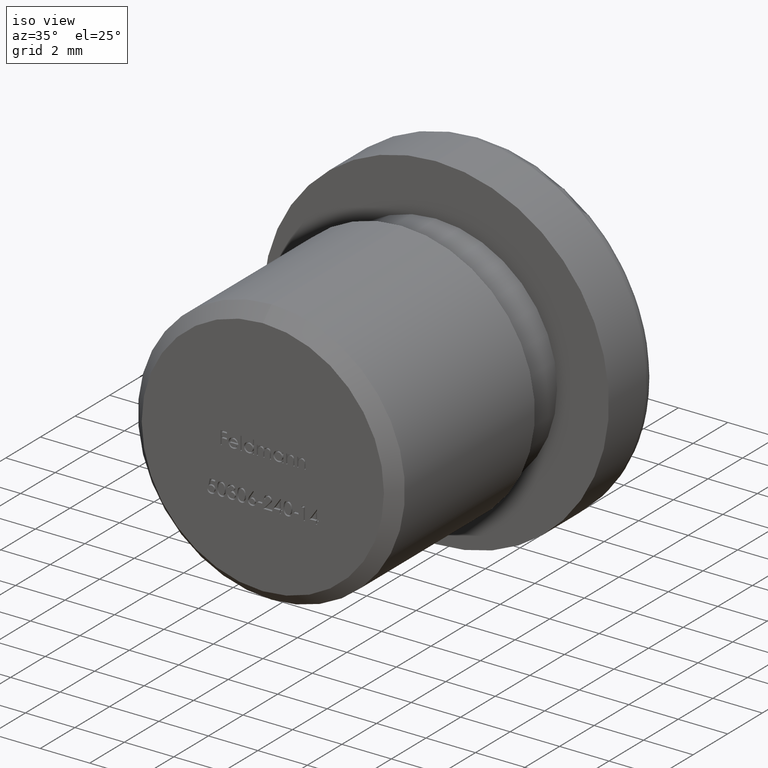
[diagram: clean part render]
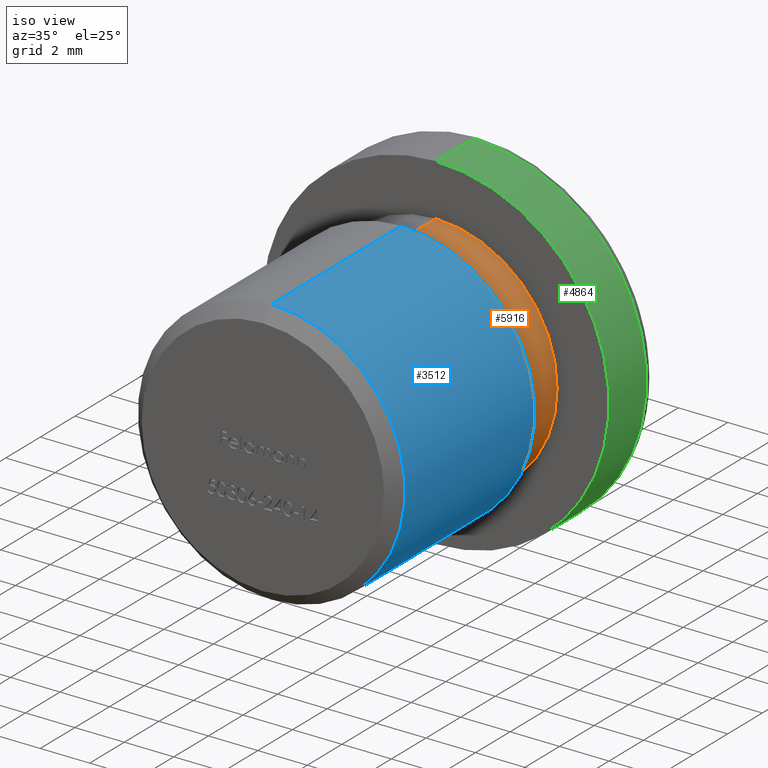
[diagram: same view with three faces highlighted in distinct colors, each labeled with its STEP entity id]
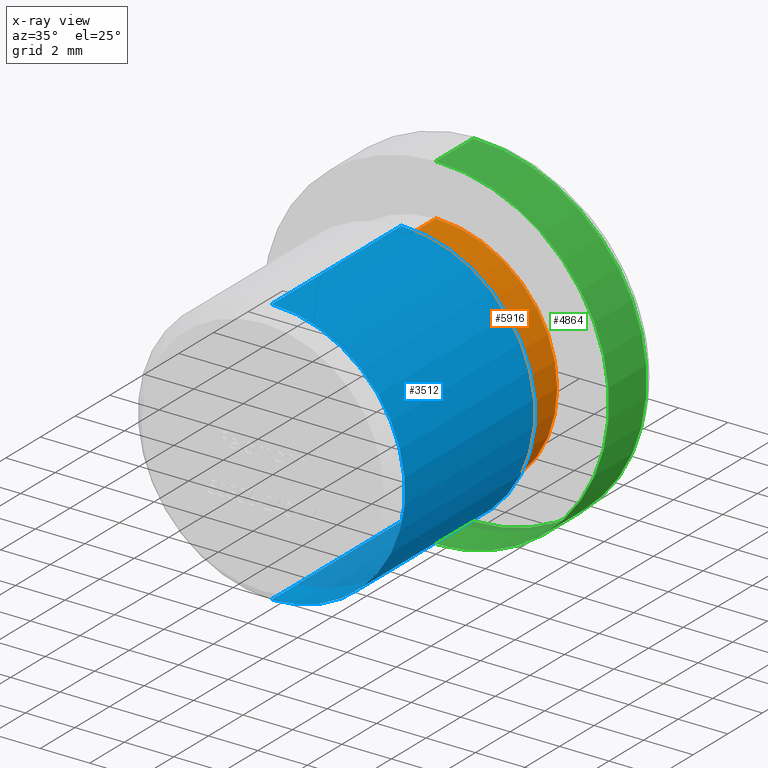
[diagram: x-ray of the same camera — body ghosted, the three highlighted faces saturated]
A machine part, iso view with three faces highlighted in distinct colors.
The next image is the same camera in x-ray (body ghosted, the three faces saturated) — at least one of them is partly hidden behind the body in this view.
Their STEP definitions:

[orange] entity #5916 — the highlighted cylindrical surface (partial cylindrical patch) has radius 4.9 mm, axis along (-0, -1, -0).
#37 = DIRECTION ( 'NONE',  ( -0.0000000000000000000, -1.000000000000000000, -0.0000000000000000000 ) ) ;
#114 = EDGE_CURVE ( 'NONE', #4707, #1824, #4115, .T. ) ;
#119 = CARTESIAN_POINT ( 'NONE',  ( 0.0000000000000000000, 8.499999999999998200, 0.0000000000000000000 ) ) ;
#229 = VECTOR ( 'NONE', #2587, 1000.000000000000000 ) ;
#782 = VERTEX_POINT ( 'NONE', #941 ) ;
#941 = CARTESIAN_POINT ( 'NONE',  ( 0.0000000000000000000, 8.499999999999998200, -4.899999999999999500 ) ) ;
#1355 = CARTESIAN_POINT ( 'NONE',  ( 0.0000000000000000000, 0.0000000000000000000, -4.899999999999999500 ) ) ;
#1472 = CYLINDRICAL_SURFACE ( 'NONE', #4828, 4.899999999999999500 ) ;
#1775 = EDGE_CURVE ( 'NONE', #13017, #782, #10846, .T. ) ;
#1824 = VERTEX_POINT ( 'NONE', #8151 ) ;
#2587 = DIRECTION ( 'NONE',  ( -0.0000000000000000000, -1.000000000000000000, -0.0000000000000000000 ) ) ;
#2930 = CARTESIAN_POINT ( 'NONE',  ( 6.000769315822030700E-016, 10.00000000000000000, 4.899999999999999500 ) ) ;
#3078 = AXIS2_PLACEMENT_3D ( 'NONE', #7900, #9133, #12455 ) ;
#3415 = DIRECTION ( 'NONE',  ( 0.0000000000000000000, 0.0000000000000000000, -1.000000000000000000 ) ) ;
#3638 = DIRECTION ( 'NONE',  ( 0.0000000000000000000, 1.000000000000000000, 0.0000000000000000000 ) ) ;
#4115 = LINE ( 'NONE', #10584, #229 ) ;
#4707 = VERTEX_POINT ( 'NONE', #2930 ) ;
#4811 = DIRECTION ( 'NONE',  ( 0.0000000000000000000, 0.0000000000000000000, -1.000000000000000000 ) ) ;
#4828 = AXIS2_PLACEMENT_3D ( 'NONE', #10295, #37, #3415 ) ;
#5094 = ORIENTED_EDGE ( 'NONE', *, *, #9094, .T. ) ;
#5680 = ORIENTED_EDGE ( 'NONE', *, *, #114, .T. ) ;
#5916 = ADVANCED_FACE ( 'NONE', ( #6125 ), #1472, .T. ) ;
#6125 = FACE_OUTER_BOUND ( 'NONE', #13423, .T. ) ;
#7838 = VECTOR ( 'NONE', #11608, 1000.000000000000000 ) ;
#7843 = CARTESIAN_POINT ( 'NONE',  ( 0.0000000000000000000, 10.00000000000000000, -4.899999999999999500 ) ) ;
#7900 = CARTESIAN_POINT ( 'NONE',  ( 0.0000000000000000000, 10.00000000000000000, 0.0000000000000000000 ) ) ;
#8151 = CARTESIAN_POINT ( 'NONE',  ( 6.000769315822030700E-016, 8.499999999999998200, 4.899999999999999500 ) ) ;
#8285 = CIRCLE ( 'NONE', #3078, 4.899999999999999500 ) ;
#9094 = EDGE_CURVE ( 'NONE', #1824, #782, #11147, .T. ) ;
#9133 = DIRECTION ( 'NONE',  ( -0.0000000000000000000, -1.000000000000000000, -0.0000000000000000000 ) ) ;
#9986 = ORIENTED_EDGE ( 'NONE', *, *, #10135, .T. ) ;
#10135 = EDGE_CURVE ( 'NONE', #13017, #4707, #8285, .T. ) ;
#10295 = CARTESIAN_POINT ( 'NONE',  ( 0.0000000000000000000, 0.0000000000000000000, 0.0000000000000000000 ) ) ;
#10584 = CARTESIAN_POINT ( 'NONE',  ( 6.000769315822030700E-016, 0.0000000000000000000, 4.899999999999999500 ) ) ;
#10846 = LINE ( 'NONE', #1355, #7838 ) ;
#11147 = CIRCLE ( 'NONE', #14440, 4.899999999999999500 ) ;
#11608 = DIRECTION ( 'NONE',  ( -0.0000000000000000000, -1.000000000000000000, -0.0000000000000000000 ) ) ;
#11634 = ORIENTED_EDGE ( 'NONE', *, *, #1775, .F. ) ;
#12455 = DIRECTION ( 'NONE',  ( 0.0000000000000000000, 0.0000000000000000000, -1.000000000000000000 ) ) ;
#13017 = VERTEX_POINT ( 'NONE', #7843 ) ;
#13423 = EDGE_LOOP ( 'NONE', ( #9986, #5680, #5094, #11634 ) ) ;
#14440 = AXIS2_PLACEMENT_3D ( 'NONE', #119, #3638, #4811 ) ;

[blue] entity #3512 — the highlighted cylindrical surface (partial cylindrical patch) has radius 5.4 mm, axis along (-0, -1, -0).
#275 = FACE_OUTER_BOUND ( 'NONE', #2495, .T. ) ;
#413 = DIRECTION ( 'NONE',  ( -0.0000000000000000000, -1.000000000000000000, -0.0000000000000000000 ) ) ;
#1161 = CARTESIAN_POINT ( 'NONE',  ( 0.0000000000000000000, 0.5000000000000038900, -5.400000000000000400 ) ) ;
#1338 = ORIENTED_EDGE ( 'NONE', *, *, #12865, .F. ) ;
#1539 = DIRECTION ( 'NONE',  ( 0.0000000000000000000, 0.0000000000000000000, -1.000000000000000000 ) ) ;
#1797 = EDGE_CURVE ( 'NONE', #4286, #11896, #12606, .T. ) ;
#2495 = EDGE_LOOP ( 'NONE', ( #8979, #7406, #14180, #1338 ) ) ;
#2517 = VERTEX_POINT ( 'NONE', #1161 ) ;
#2786 = CARTESIAN_POINT ( 'NONE',  ( 0.0000000000000000000, 0.0000000000000000000, -5.400000000000000400 ) ) ;
#3512 = ADVANCED_FACE ( 'NONE', ( #275 ), #9832, .T. ) ;
#3589 = CIRCLE ( 'NONE', #13227, 5.400000000000001200 ) ;
#3994 = DIRECTION ( 'NONE',  ( -0.0000000000000000000, -1.000000000000000000, -0.0000000000000000000 ) ) ;
#4286 = VERTEX_POINT ( 'NONE', #7435 ) ;
#4305 = VECTOR ( 'NONE', #3994, 1000.000000000000000 ) ;
#4489 = VECTOR ( 'NONE', #413, 1000.000000000000000 ) ;
#5065 = CIRCLE ( 'NONE', #11525, 5.400000000000000400 ) ;
#5647 = DIRECTION ( 'NONE',  ( 0.0000000000000000000, 0.0000000000000000000, -1.000000000000000000 ) ) ;
#6070 = CARTESIAN_POINT ( 'NONE',  ( 0.0000000000000000000, 0.0000000000000000000, 0.0000000000000000000 ) ) ;
#6371 = EDGE_CURVE ( 'NONE', #11896, #2517, #5065, .T. ) ;
#6733 = CARTESIAN_POINT ( 'NONE',  ( 0.0000000000000000000, 8.000000000000000000, 0.0000000000000000000 ) ) ;
#6752 = CARTESIAN_POINT ( 'NONE',  ( 0.0000000000000000000, 8.000000000000000000, -5.400000000000001200 ) ) ;
#7406 = ORIENTED_EDGE ( 'NONE', *, *, #1797, .T. ) ;
#7435 = CARTESIAN_POINT ( 'NONE',  ( 6.613092715395709400E-016, 8.000000000000000000, 5.400000000000001200 ) ) ;
#8266 = DIRECTION ( 'NONE',  ( 0.0000000000000000000, 0.0000000000000000000, -1.000000000000000000 ) ) ;
#8979 = ORIENTED_EDGE ( 'NONE', *, *, #13072, .T. ) ;
#9479 = CARTESIAN_POINT ( 'NONE',  ( 0.0000000000000000000, 0.5000000000000038900, 0.0000000000000000000 ) ) ;
#9545 = CARTESIAN_POINT ( 'NONE',  ( 6.613092715395707500E-016, 0.5000000000000038900, 5.400000000000000400 ) ) ;
#9732 = VERTEX_POINT ( 'NONE', #6752 ) ;
#9832 = CYLINDRICAL_SURFACE ( 'NONE', #10187, 5.400000000000000400 ) ;
#9944 = LINE ( 'NONE', #2786, #4305 ) ;
#10187 = AXIS2_PLACEMENT_3D ( 'NONE', #6070, #11631, #8266 ) ;
#11525 = AXIS2_PLACEMENT_3D ( 'NONE', #9479, #13851, #1539 ) ;
#11631 = DIRECTION ( 'NONE',  ( -0.0000000000000000000, -1.000000000000000000, -0.0000000000000000000 ) ) ;
#11896 = VERTEX_POINT ( 'NONE', #9545 ) ;
#12400 = DIRECTION ( 'NONE',  ( -0.0000000000000000000, -1.000000000000000000, -0.0000000000000000000 ) ) ;
#12606 = LINE ( 'NONE', #13947, #4489 ) ;
#12865 = EDGE_CURVE ( 'NONE', #9732, #2517, #9944, .T. ) ;
#13072 = EDGE_CURVE ( 'NONE', #9732, #4286, #3589, .T. ) ;
#13227 = AXIS2_PLACEMENT_3D ( 'NONE', #6733, #12400, #5647 ) ;
#13851 = DIRECTION ( 'NONE',  ( 0.0000000000000000000, 1.000000000000000000, 0.0000000000000000000 ) ) ;
#13947 = CARTESIAN_POINT ( 'NONE',  ( 6.613092715395707500E-016, 0.0000000000000000000, 5.400000000000000400 ) ) ;
#14180 = ORIENTED_EDGE ( 'NONE', *, *, #6371, .T. ) ;

[green] entity #4864 — the highlighted cylindrical surface (partial cylindrical patch) has radius 7 mm, axis along (-0, -1, -0).
#724 = AXIS2_PLACEMENT_3D ( 'NONE', #8073, #12576, #5724 ) ;
#1066 = LINE ( 'NONE', #9960, #13802 ) ;
#1190 = CARTESIAN_POINT ( 'NONE',  ( 0.0000000000000000000, 10.00000000000000000, 0.0000000000000000000 ) ) ;
#1335 = LINE ( 'NONE', #11318, #12161 ) ;
#1401 = CARTESIAN_POINT ( 'NONE',  ( 0.0000000000000000000, 10.00000000000000000, -7.000000000000000000 ) ) ;
#1518 = ORIENTED_EDGE ( 'NONE', *, *, #3028, .F. ) ;
#1808 = VERTEX_POINT ( 'NONE', #1401 ) ;
#2528 = CARTESIAN_POINT ( 'NONE',  ( 8.572527594031474200E-016, 10.00000000000000000, 7.000000000000000900 ) ) ;
#2860 = AXIS2_PLACEMENT_3D ( 'NONE', #1190, #5784, #7986 ) ;
#3028 = EDGE_CURVE ( 'NONE', #1808, #5459, #13735, .T. ) ;
#3169 = CARTESIAN_POINT ( 'NONE',  ( 0.0000000000000000000, 0.0000000000000000000, 0.0000000000000000000 ) ) ;
#4430 = EDGE_CURVE ( 'NONE', #12416, #5459, #1335, .T. ) ;
#4500 = DIRECTION ( 'NONE',  ( -0.0000000000000000000, -1.000000000000000000, -0.0000000000000000000 ) ) ;
#4864 = ADVANCED_FACE ( 'NONE', ( #8082 ), #9127, .T. ) ;
#5323 = EDGE_LOOP ( 'NONE', ( #9120, #11248, #1518, #12128 ) ) ;
#5445 = CARTESIAN_POINT ( 'NONE',  ( 8.572527594031470200E-016, 12.17304056233545900, 6.999999999999997300 ) ) ;
#5459 = VERTEX_POINT ( 'NONE', #2528 ) ;
#5724 = DIRECTION ( 'NONE',  ( 0.0000000000000000000, 0.0000000000000000000, -1.000000000000000000 ) ) ;
#5784 = DIRECTION ( 'NONE',  ( -0.0000000000000000000, -1.000000000000000000, -0.0000000000000000000 ) ) ;
#7826 = AXIS2_PLACEMENT_3D ( 'NONE', #3169, #8971, #12392 ) ;
#7986 = DIRECTION ( 'NONE',  ( 0.0000000000000000000, 0.0000000000000000000, -1.000000000000000000 ) ) ;
#8073 = CARTESIAN_POINT ( 'NONE',  ( 0.0000000000000000000, 12.17304056233545900, 0.0000000000000000000 ) ) ;
#8082 = FACE_OUTER_BOUND ( 'NONE', #5323, .T. ) ;
#8156 = VERTEX_POINT ( 'NONE', #14322 ) ;
#8971 = DIRECTION ( 'NONE',  ( -0.0000000000000000000, -1.000000000000000000, -0.0000000000000000000 ) ) ;
#9120 = ORIENTED_EDGE ( 'NONE', *, *, #11477, .T. ) ;
#9127 = CYLINDRICAL_SURFACE ( 'NONE', #7826, 6.999999999999997300 ) ;
#9960 = CARTESIAN_POINT ( 'NONE',  ( 0.0000000000000000000, 0.0000000000000000000, -6.999999999999997300 ) ) ;
#10076 = DIRECTION ( 'NONE',  ( -0.0000000000000000000, -1.000000000000000000, -0.0000000000000000000 ) ) ;
#11248 = ORIENTED_EDGE ( 'NONE', *, *, #4430, .T. ) ;
#11318 = CARTESIAN_POINT ( 'NONE',  ( 8.572527594031470200E-016, 0.0000000000000000000, 6.999999999999997300 ) ) ;
#11477 = EDGE_CURVE ( 'NONE', #8156, #12416, #12810, .T. ) ;
#12128 = ORIENTED_EDGE ( 'NONE', *, *, #14195, .F. ) ;
#12161 = VECTOR ( 'NONE', #10076, 1000.000000000000000 ) ;
#12392 = DIRECTION ( 'NONE',  ( 0.0000000000000000000, 0.0000000000000000000, -1.000000000000000000 ) ) ;
#12416 = VERTEX_POINT ( 'NONE', #5445 ) ;
#12576 = DIRECTION ( 'NONE',  ( -0.0000000000000000000, -1.000000000000000000, -0.0000000000000000000 ) ) ;
#12810 = CIRCLE ( 'NONE', #724, 6.999999999999997300 ) ;
#13735 = CIRCLE ( 'NONE', #2860, 7.000000000000000000 ) ;
#13802 = VECTOR ( 'NONE', #4500, 1000.000000000000000 ) ;
#14195 = EDGE_CURVE ( 'NONE', #8156, #1808, #1066, .T. ) ;
#14322 = CARTESIAN_POINT ( 'NONE',  ( 0.0000000000000000000, 12.17304056233545900, -6.999999999999997300 ) ) ;